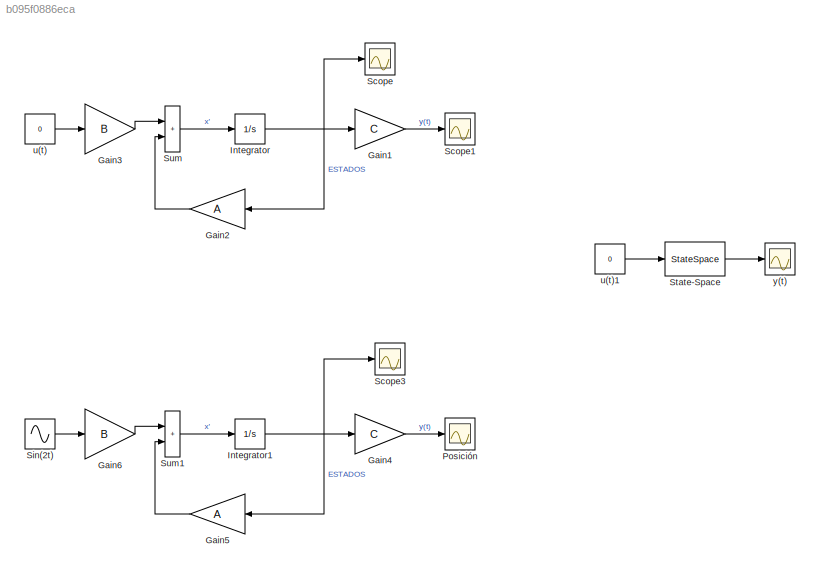
MODEL slx_b095f0886eca
KIND model
CONFIG AbsTol = auto
CONFIG EnableMultiTasking = off
CONFIG FixedStep = 0.01
CONFIG MaxStep = auto
CONFIG MinStep = auto
CONFIG RelTol = 1e-3
CONFIG SampleTimeConstraint = Unconstrained
CONFIG SolverName = ode8
CONFIG StartTime = 0.0
CONFIG StopTime = 50
BLOCK [Gain] Gain1
  Gain = C
  Multiplication = Matrix(K*u) (u vector)
BLOCK [Gain] Gain2
  Gain = A
  Multiplication = Matrix(K*u) (u vector)
  NameLocation = top
BLOCK [Gain] Gain3
  Gain = B
  Multiplication = Matrix(K*u) (u vector)
BLOCK [Gain] Gain4
  Gain = C
  Multiplication = Matrix(K*u) (u vector)
BLOCK [Gain] Gain5
  Gain = A
  Multiplication = Matrix(K*u) (u vector)
  NameLocation = top
BLOCK [Gain] Gain6
  Gain = B
  Multiplication = Matrix(K*u) (u vector)
BLOCK [Integrator] Integrator
  InitialCondition = y0
BLOCK [Integrator] Integrator1
  InitialCondition = y0
BLOCK [Scope] Posición
  Floating = off
  NumInputPorts = 1
  ScopeSpecificationString = Simulink.scopes.TimeScopeBlockCfg('CurrentConfiguration', extmgr.ConfigurationSet(extmgr.Configuration('Core','General UI',true),extmgr.Configuration('Core','Source UI',true),extmgr.Configuration('Sources','WiredSimulink',true,'DataLoggingVariableName','Salida_Exp5','DataLogging',true,'DataLoggingSaveFormat','StructureWithTime'),extmgr.Configuration('Visuals','Time Domain',true,'SerializedDisplays...<+1529ch>
BLOCK [Scope] Scope
  Floating = off
  NumInputPorts = 1
  ScopeSpecificationString = Simulink.scopes.TimeScopeBlockCfg('CurrentConfiguration', extmgr.ConfigurationSet(extmgr.Configuration('Core','General UI',true),extmgr.Configuration('Core','Source UI',true),extmgr.Configuration('Sources','WiredSimulink',true,'DataLoggingVariableName','EstadosExp3','DataLogging',true,'DataLoggingSaveFormat','StructureWithTime'),extmgr.Configuration('Visuals','Time Domain',true,'SerializedDisplays...<+1473ch>
BLOCK [Scope] Scope1
  Floating = off
  NumInputPorts = 1
  ScopeSpecificationString = Simulink.scopes.TimeScopeBlockCfg('CurrentConfiguration', extmgr.ConfigurationSet(extmgr.Configuration('Core','General UI',true),extmgr.Configuration('Core','Source UI',true),extmgr.Configuration('Sources','WiredSimulink',true,'DataLoggingVariableName','SalidaExp3','DataLogging',true,'DataLoggingSaveFormat','StructureWithTime'),extmgr.Configuration('Visuals','Time Domain',true,'SerializedDisplays'...<+1455ch>
BLOCK [Scope] Scope3
  Floating = off
  NumInputPorts = 1
  ScopeSpecificationString = Simulink.scopes.TimeScopeBlockCfg('CurrentConfiguration', extmgr.ConfigurationSet(extmgr.Configuration('Core','General UI',true),extmgr.Configuration('Core','Source UI',true),extmgr.Configuration('Sources','WiredSimulink',true,'DataLoggingVariableName','Estados_Exp5','DataLogging',true,'DataLoggingSaveFormat','StructureWithTime'),extmgr.Configuration('Visuals','Time Domain',true,'SerializedDisplay...<+1473ch>
BLOCK [Sin] Sin(2t)
  Frequency = 2
  SampleTime = 0
BLOCK [StateSpace] State-Space
  A = A
  B = B
  C = C
  D = 0
  InitialCondition = y0
BLOCK [Sum] Sum
  IconShape = rectangular
  Inputs = |++
BLOCK [Sum] Sum1
  IconShape = rectangular
  Inputs = |++
BLOCK [Constant] u(t)
  Value = 0
BLOCK [Constant] u(t)1
  Value = 0
BLOCK [Scope] y(t)
  Floating = off
  NumInputPorts = 1
  ScopeSpecificationString = Simulink.scopes.TimeScopeBlockCfg('CurrentConfiguration', extmgr.ConfigurationSet(extmgr.Configuration('Core','General UI',true),extmgr.Configuration('Core','Source UI',true),extmgr.Configuration('Sources','WiredSimulink',true,'DataLoggingVariableName','SalidaState_Space','DataLogging',true,'DataLoggingSaveFormat','StructureWithTime'),extmgr.Configuration('Visuals','Time Domain',true,'SerializedDi...<+1469ch>
LINE Gain1:1 -> Scope1:1
LINE Gain2:1 -> Sum:2
LINE Gain3:1 -> Sum:1
LINE Gain4:1 -> Posición:1
LINE Gain5:1 -> Sum1:2
LINE Gain6:1 -> Sum1:1
NET Integrator1:1 -> Gain4:1, Gain5:1, Scope3:1
NET Integrator:1 -> Gain1:1, Gain2:1, Scope:1
LINE Sin(2t):1 -> Gain6:1
LINE State-Space:1 -> y(t):1
LINE Sum1:1 -> Integrator1:1
LINE Sum:1 -> Integrator:1
LINE u(t)1:1 -> State-Space:1
LINE u(t):1 -> Gain3:1
note: NET lines group one-source signal fan-out (src -> all destinations, sorted); 1:1 wires keep LINE
